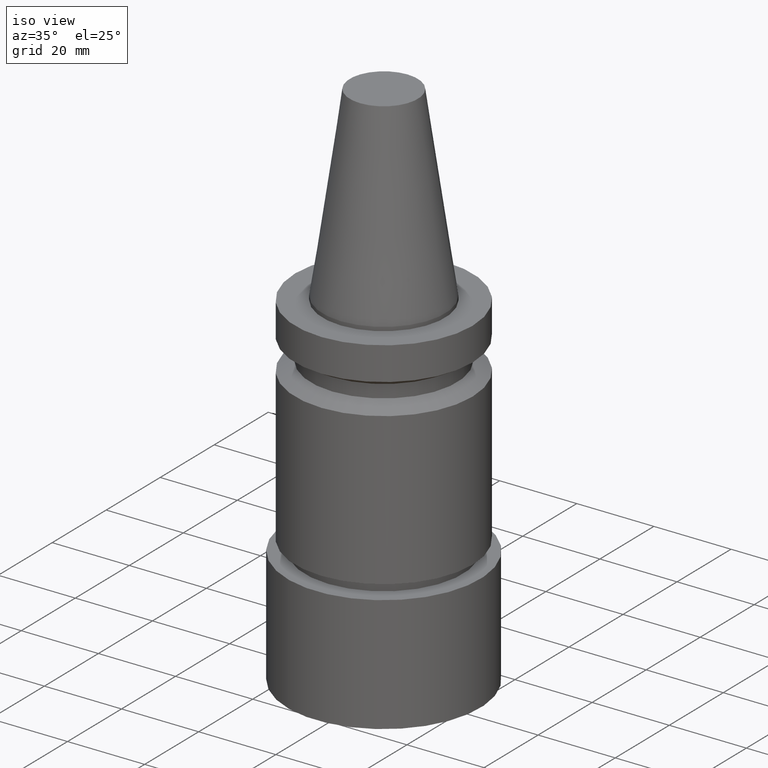
[diagram: clean part render]
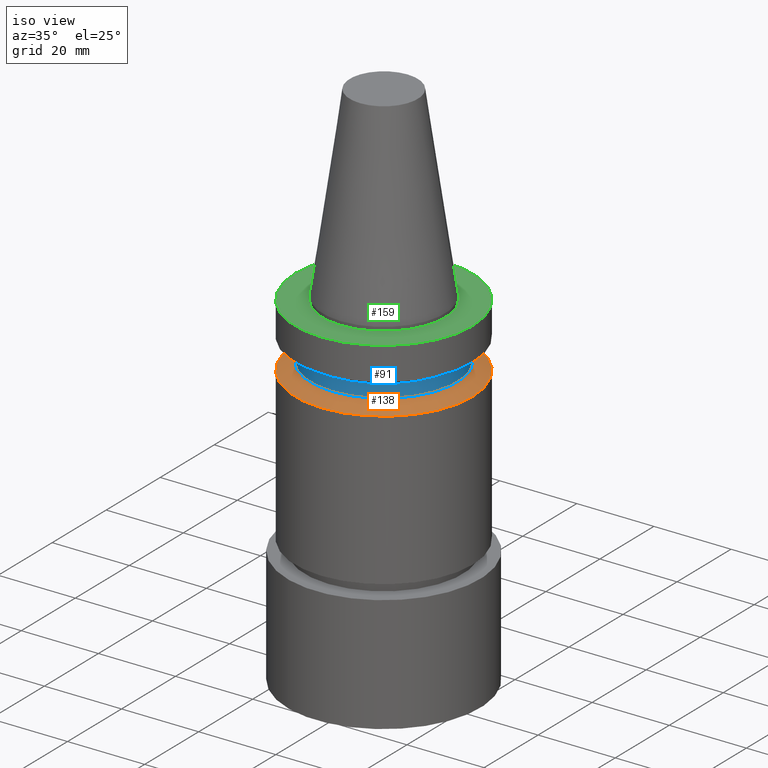
[diagram: same view with three faces highlighted in distinct colors, each labeled with its STEP entity id]
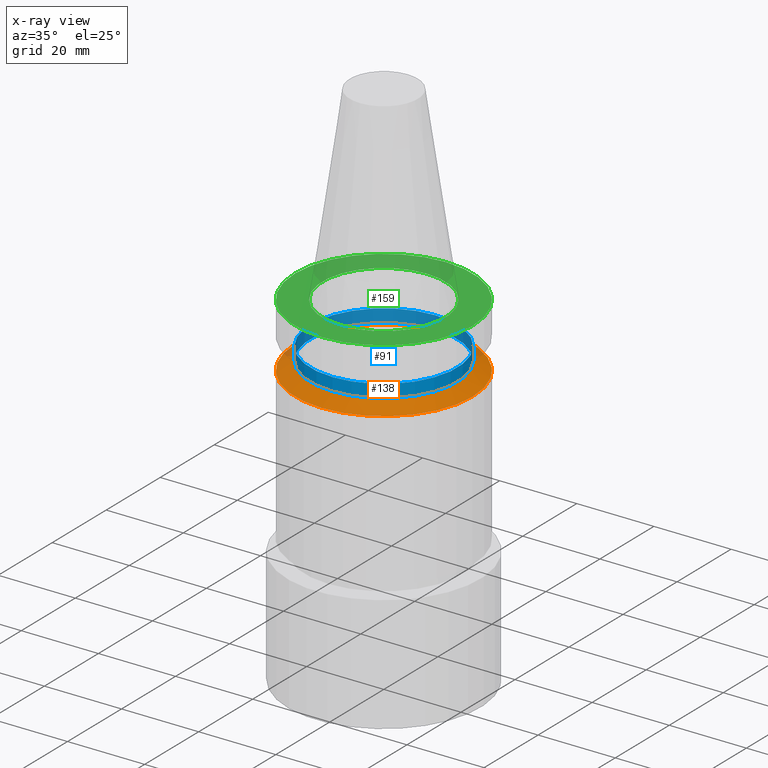
[diagram: x-ray of the same camera — body ghosted, the three highlighted faces saturated]
A machine part, iso view with three faces highlighted in distinct colors.
The next image is the same camera in x-ray (body ghosted, the three faces saturated) — at least one of them is partly hidden behind the body in this view.
Their STEP definitions:

[orange] entity #138 — the highlighted conical surface has half-angle 60 deg.
#105=EDGE_CURVE('Unnamed[1]',#237,#237,#238,.T.);
#119=EDGE_CURVE('Unnamed[1]',#258,#258,#259,.T.);
#138=ADVANCED_FACE('Unnamed[1]',(#287,#288),#289,.T.);
#237=VERTEX_POINT('',#402);
#238=CIRCLE('',#403,19.0);
#258=VERTEX_POINT('',#429);
#259=CIRCLE('',#430,23.0);
#287=FACE_BOUND('',#466,.T.);
#288=FACE_BOUND('',#467,.T.);
#289=CONICAL_SURFACE('',#468,21.0,1.04719755058882);
#402=CARTESIAN_POINT('',(9.36279151221199E-016,19.0,-15.29059892));
#403=AXIS2_PLACEMENT_3D('',#572,#573,#574);
#429=CARTESIAN_POINT('',(1.07768918324967E-015,23.0,-17.6));
#430=AXIS2_PLACEMENT_3D('',#595,#596,#597);
#466=EDGE_LOOP('',(#626));
#467=EDGE_LOOP('',(#627));
#468=AXIS2_PLACEMENT_3D('',#628,#629,#630);
#572=CARTESIAN_POINT('',(9.36279151221199E-016,1.8725583024424E-015,-15.29059892));
#573=DIRECTION('',(6.12323399573677E-017,1.22464679914735E-016,-1.0));
#574=DIRECTION('',(-1.23259516440783E-032,1.0,1.22464679914735E-016));
#595=CARTESIAN_POINT('',(1.07768918324967E-015,2.15537836649934E-015,-17.6));
#596=DIRECTION('',(6.12323399573677E-017,1.22464679914735E-016,-1.0));
#597=DIRECTION('',(-1.23259516440783E-032,1.0,1.22464679914735E-016));
#626=ORIENTED_EDGE('',*,*,#119,.F.);
#627=ORIENTED_EDGE('',*,*,#105,.T.);
#628=CARTESIAN_POINT('',(1.00698416723543E-015,2.01396833447087E-015,-16.44529946));
#629=DIRECTION('',(6.12323399573677E-017,1.22464679914735E-016,-1.0));
#630=DIRECTION('',(-1.23259516440783E-032,1.0,1.22464679914735E-016));

[blue] entity #91 — the highlighted cylindrical surface (bore or boss wall) has radius 19 mm, axis along (0, 0, -1).
#91=ADVANCED_FACE('Unnamed[1]',(#214,#215),#216,.T.);
#105=EDGE_CURVE('Unnamed[1]',#237,#237,#238,.T.);
#143=EDGE_CURVE('Unnamed[1]',#295,#295,#296,.T.);
#214=FACE_BOUND('',#374,.T.);
#215=FACE_BOUND('',#375,.T.);
#216=CYLINDRICAL_SURFACE('',#376,19.0);
#237=VERTEX_POINT('',#402);
#238=CIRCLE('',#403,19.0);
#295=VERTEX_POINT('',#476);
#296=CIRCLE('',#477,19.0);
#374=EDGE_LOOP('',(#544));
#375=EDGE_LOOP('',(#545));
#376=AXIS2_PLACEMENT_3D('',#546,#547,#548);
#402=CARTESIAN_POINT('',(9.36279151221199E-016,19.0,-15.29059892));
#403=AXIS2_PLACEMENT_3D('',#572,#573,#574);
#476=CARTESIAN_POINT('',(7.29240495619202E-016,19.0,-11.90940108));
#477=AXIS2_PLACEMENT_3D('',#636,#637,#638);
#544=ORIENTED_EDGE('',*,*,#105,.F.);
#545=ORIENTED_EDGE('',*,*,#143,.T.);
#546=CARTESIAN_POINT('',(8.32759823420201E-016,1.6655196468404E-015,-13.6));
#547=DIRECTION('',(6.12323399573677E-017,1.22464679914735E-016,-1.0));
#548=DIRECTION('',(-1.23259516440783E-032,1.0,1.22464679914735E-016));
#572=CARTESIAN_POINT('',(9.36279151221199E-016,1.8725583024424E-015,-15.29059892));
#573=DIRECTION('',(6.12323399573677E-017,1.22464679914735E-016,-1.0));
#574=DIRECTION('',(-1.23259516440783E-032,1.0,1.22464679914735E-016));
#636=CARTESIAN_POINT('',(7.29240495619202E-016,1.4584809912384E-015,-11.90940108));
#637=DIRECTION('',(6.12323399573677E-017,1.22464679914735E-016,-1.0));
#638=DIRECTION('',(-1.23259516440783E-032,1.0,1.22464679914735E-016));

[green] entity #159 — the highlighted planar face has unit normal (-0, -0, 1).
#126=EDGE_CURVE('Unnamed[1]',#269,#269,#270,.T.);
#133=EDGE_CURVE('Unnamed[1]',#280,#280,#281,.T.);
#159=ADVANCED_FACE('Unnamed[1]',(#316,#317),#318,.T.);
#269=VERTEX_POINT('',#443);
#270=CIRCLE('',#444,23.0);
#280=VERTEX_POINT('',#457);
#281=CIRCLE('',#458,15.875);
#316=FACE_OUTER_BOUND('',#501,.T.);
#317=FACE_BOUND('',#502,.T.);
#318=PLANE('',#503);
#443=CARTESIAN_POINT('',(6.12323399573674E-017,23.0,-0.999999999999997));
#444=AXIS2_PLACEMENT_3D('',#607,#608,#609);
#457=CARTESIAN_POINT('',(6.12323399573675E-017,15.875,-0.999999999999998));
#458=AXIS2_PLACEMENT_3D('',#619,#620,#621);
#501=EDGE_LOOP('',(#654));
#502=EDGE_LOOP('',(#655));
#503=AXIS2_PLACEMENT_3D('',#656,#657,#658);
#607=CARTESIAN_POINT('',(6.12323399573677E-017,1.22464679914735E-016,-1.0));
#608=DIRECTION('',(6.12323399573677E-017,1.22464679914735E-016,-1.0));
#609=DIRECTION('',(-1.23259516440783E-032,1.0,1.22464679914735E-016));
#619=CARTESIAN_POINT('',(6.12323399573677E-017,1.22464679914735E-016,-1.0));
#620=DIRECTION('',(6.12323399573677E-017,1.22464679914735E-016,-1.0));
#621=DIRECTION('',(-1.23259516440783E-032,1.0,1.22464679914735E-016));
#654=ORIENTED_EDGE('',*,*,#126,.F.);
#655=ORIENTED_EDGE('',*,*,#133,.T.);
#656=CARTESIAN_POINT('',(6.12323399573674E-017,19.4375,-0.999999999999998));
#657=DIRECTION('',(-6.12323399573677E-017,-1.22464679914735E-016,1.0));
#658=DIRECTION('',(1.23259516440783E-032,-1.0,-1.22464679914735E-016));